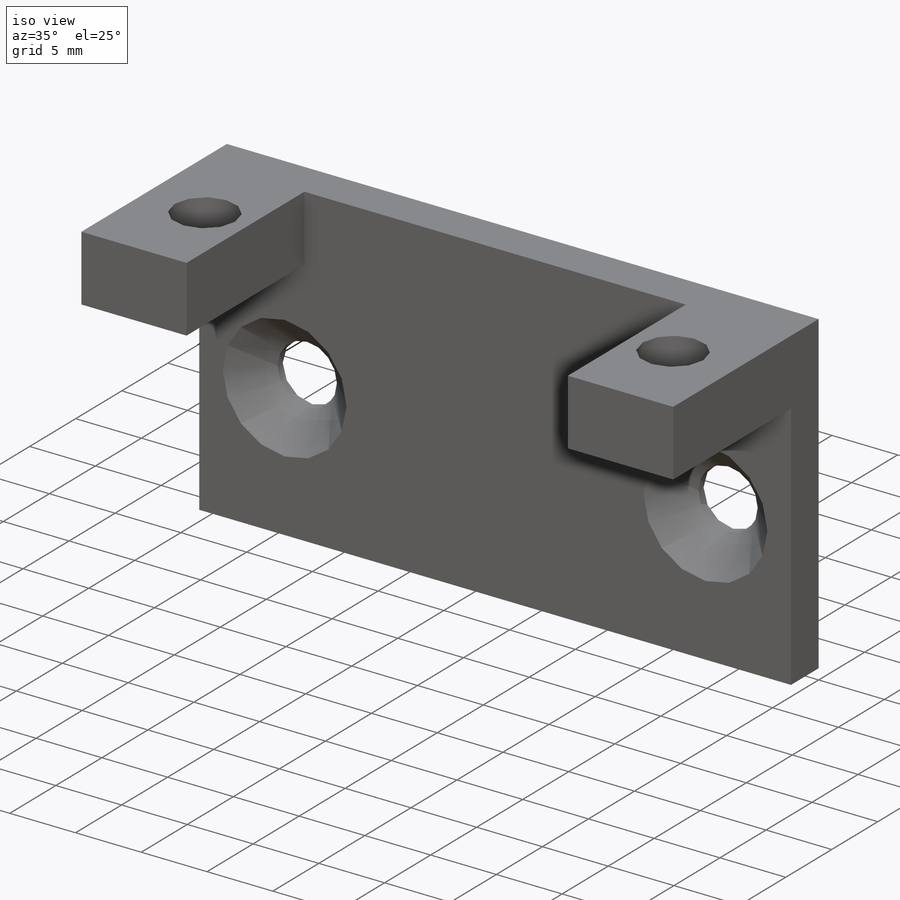
[diagram: iso view]
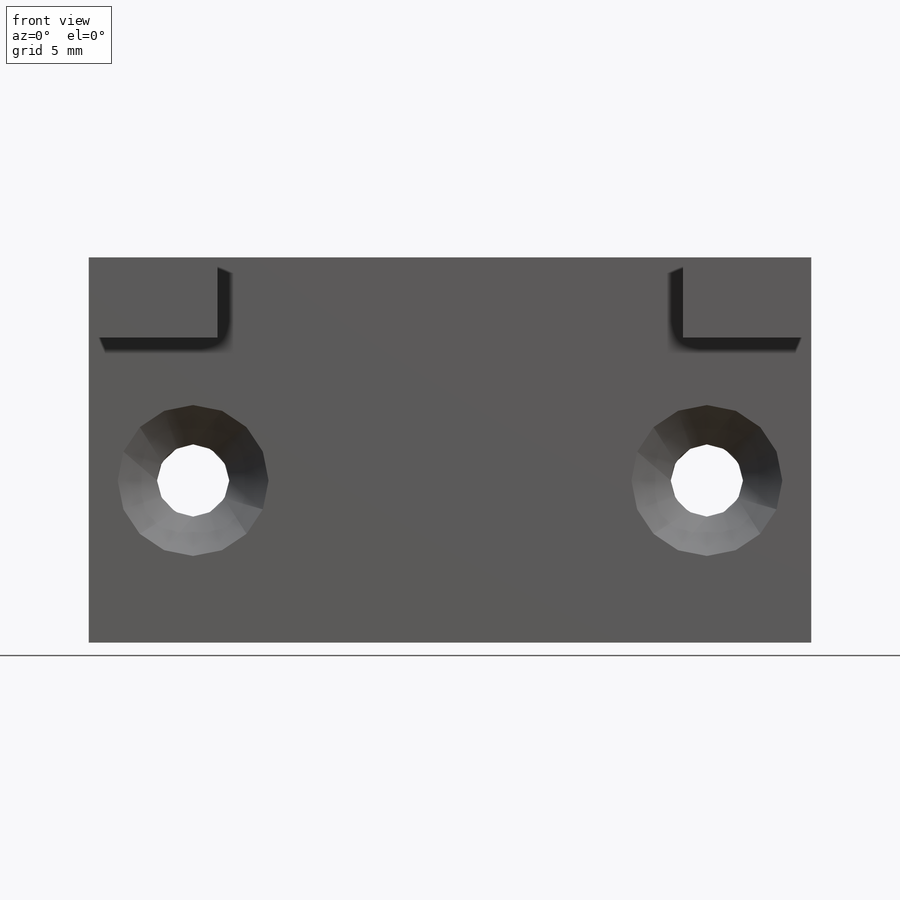
[diagram: front view]
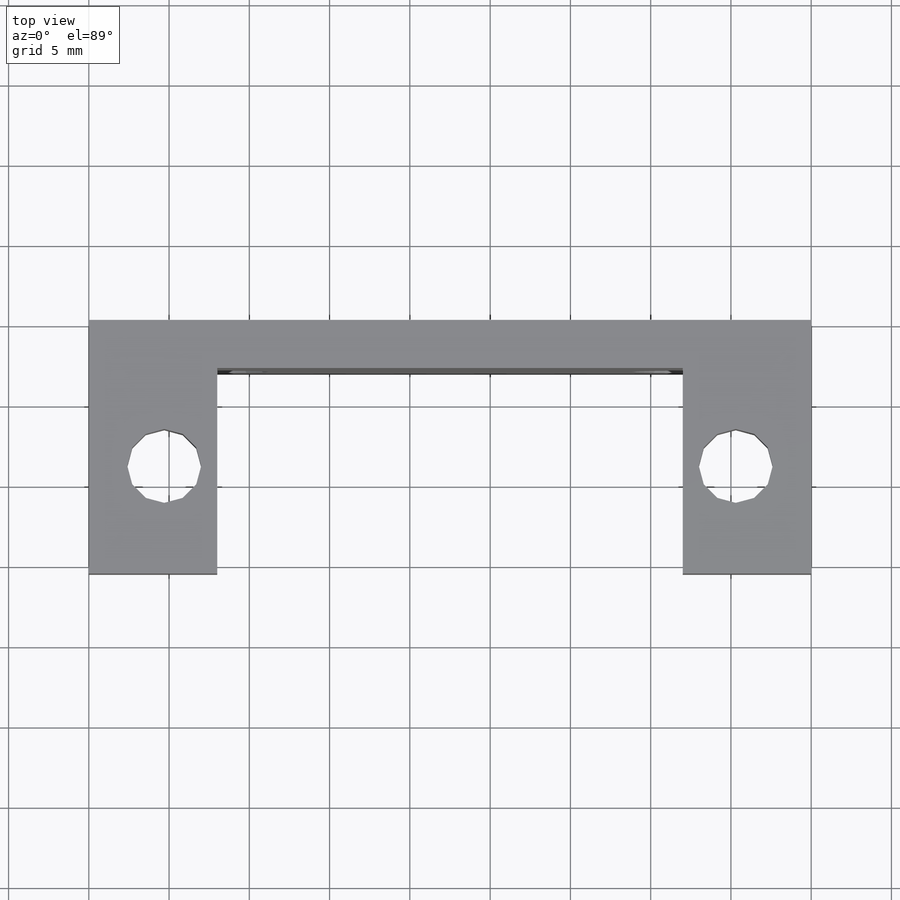
[diagram: top view]
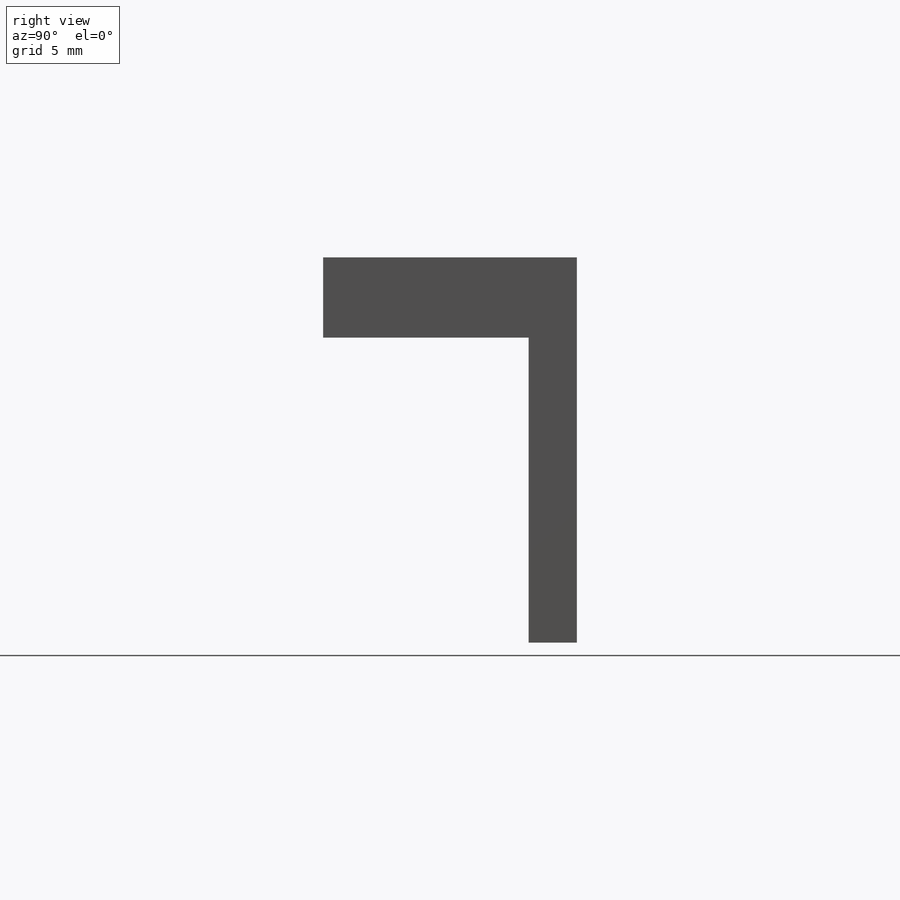
[diagram: right view]
SOLIDWORKS PART (.sldprt)
format: sldprt  version: not decoded by parser v0  size: 260,608 bytes
history: native  units: mm
features: sketch x7, plane x5, cut_extrude x3, extrude x2, material x1, hole x1, pattern_linear x1, mirror x1 (+10 scaffold rows collapsed)
feature tree (31):
  scaffold x10  (default folders/planes/origin — collapsed)
  material  "Material <not specified>"
  plane  "Face"
  plane  "Dessus"
  plane  "Droite"
  sketch  "Esquisse1"  dims[D1=19.0mm D2=45.0mm]
  extrude  "Boss.-Extru.1"  Depth=3mm
  hole  "Fraisage pour vis à tête fraisée M42"  Diameter=4.5mm Depth=3mm
  sketch  "Esquisse6"  dims[c1.D1=6.5mm c1.D2=~11.121735mm c2.D2=90.0deg c3.D2=8.9mm]
  sketch  "Esquisse5"  dims[hole-wizard template sketch: 54 standard entries collapsed; hole parameters kept: c17.Diamètre du perçage jusqu'au prochain=4.5mm c17.Profondeur du perçage jusqu'au prochain=3.0mm c17.Diamètre du fraisage entrant=9.4mm c17.D4=~3.666174mm c17.Angle du fraisage entrant=90.0deg]
  pattern_linear  "Répétition linéaire3"  Count1=2 Count2=1 Spacing1=32mm Spacing2=10mm
  plane  "Plan1"
  sketch  "Esquisse7"  dims[D1=5.0mm D2=15.8mm]
  extrude  "Boss.-Extru.2"  [1 undecoded]
  sketch  "Esquisse8"  dims[c1.D1=29.0mm c1.D2=12.9mm c1.D3=0.0mm c1.D4=8.0mm c2.D2=0.0mm]
  cut_extrude  "Enlèv. mat.-Extru.4"  Depth=3mm
  cut_extrude  "Enlèv. mat.-Extru.5"  [1 undecoded]
  sketch  "Esquisse8<5>"
  sketch  "Esquisse9"  dims[c1.D3=4.6mm c1.D1=4.7mm c1.D2=~8.290209mm c2.D2=90.0deg c3.D2=6.7mm]
  cut_extrude  "Enlèv. mat.-Extru.6"  Depth=10mm
  plane  "Plan2"
  mirror  "Symétrie1"
decode coverage: 11 of 15 modeling features carry decoded parameters
note: ~ marks probable driven/reference dimensions
note: 2 parameter values undecoded
note: suppression state not decoded; provenance and decode notes live in map.json
